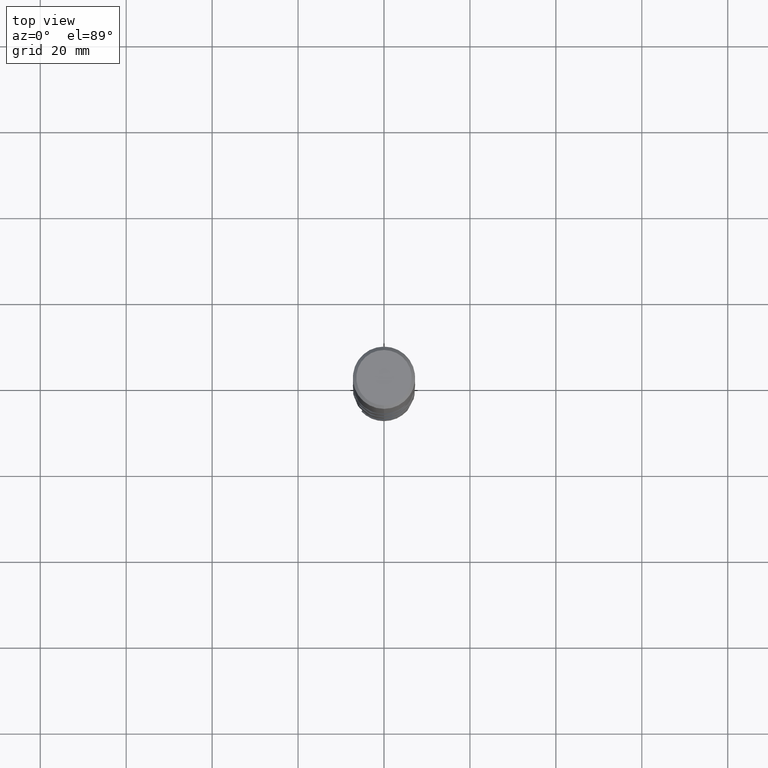
[diagram: clean part render]
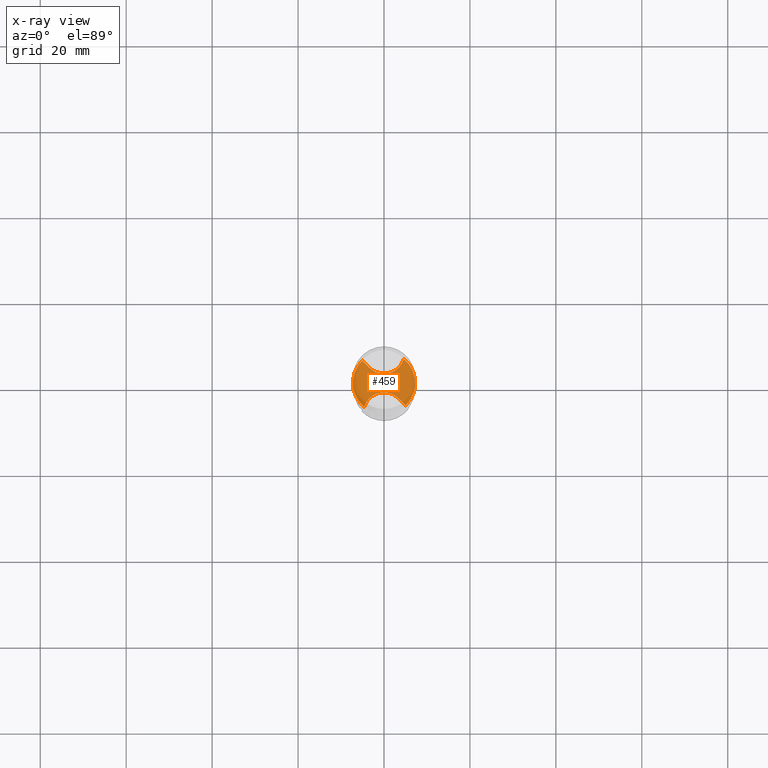
[diagram: x-ray — body ghosted, one internal face saturated and labeled with its STEP entity id]
A machine part, top view, then the same camera in x-ray: the body is ghosted and one INTERNAL B-rep face — a face not visible from any outside direction — is saturated and labeled: STEP entity #459.
In plain terms, the highlighted planar face has unit normal (-0, 0, 1).
Its self-contained STEP definition (entity closure, byte-faithful):
#297=EDGE_CURVE('',#371,#701,#777,.T.);
#371=VERTEX_POINT('',#855);
#405=VERTEX_POINT('',#892);
#459=ADVANCED_FACE('',(#951),#952,.T.);
#477=EDGE_CURVE('',#581,#371,#972,.T.);
#495=VERTEX_POINT('',#991);
#507=EDGE_CURVE('',#405,#701,#1006,.T.);
#545=EDGE_CURVE('',#605,#495,#1048,.T.);
#581=VERTEX_POINT('',#1089);
#583=EDGE_CURVE('',#581,#495,#1091,.T.);
#605=VERTEX_POINT('',#1113);
#639=EDGE_CURVE('',#405,#605,#1150,.T.);
#701=VERTEX_POINT('',#1218);
#777=B_SPLINE_CURVE_WITH_KNOTS('',3,(#1374,#1375,#1376,#1377),.UNSPECIFIED.,.F.,.F.,(4,4),(0.0,5.22160163024618),.UNSPECIFIED.);
#855=CARTESIAN_POINT('',(-3.42080777330725,3.59099069512563,-72.8));
#892=CARTESIAN_POINT('',(-4.61739645179763,-5.58933806607962,-72.8));
#951=FACE_OUTER_BOUND('',#3158,.T.);
#952=PLANE('',#3159);
#972=B_SPLINE_CURVE_WITH_KNOTS('',3,(#3214,#3215,#3216,#3217,#3218,#3219,#3220,#3221,#3222,#3223,#3224,#3225,#3226,#3227,#3228,#3229),.UNSPECIFIED.,.F.,.F.,(4,2,2,2,2,2,2,4),(0.0,1.88804918587361,3.77593282030139,5.66379115889456,7.55174514325546,9.43985975144161,10.5762658189255,11.7126866601235),.UNSPECIFIED.);
#991=CARTESIAN_POINT('',(5.04056011043295,-5.21093118195896,-72.8));
#1006=CIRCLE('',#4141,7.2499);
#1048=B_SPLINE_CURVE_WITH_KNOTS('',3,(#4547,#4548,#4549,#4550),.UNSPECIFIED.,.F.,.F.,(4,4),(0.0,5.22160163137986),.UNSPECIFIED.);
#1089=CARTESIAN_POINT('',(4.61739645179762,5.58933806607962,-72.8));
#1091=CIRCLE('',#5684,7.2499);
#1113=CARTESIAN_POINT('',(3.42080777330725,-3.59099069512565,-72.8));
#1150=B_SPLINE_CURVE_WITH_KNOTS('',3,(#5936,#5937,#5938,#5939,#5940,#5941,#5942,#5943,#5944,#5945,#5946,#5947,#5948,#5949,#5950,#5951),.UNSPECIFIED.,.F.,.F.,(4,2,2,2,2,2,2,4),(0.0,1.88804918587363,3.77593282030144,5.66379115889476,7.55174514325588,9.43985975144221,10.5762658189262,11.7126866601245),.UNSPECIFIED.);
#1218=CARTESIAN_POINT('',(-5.04056011043295,5.21093118195895,-72.8));
#1374=CARTESIAN_POINT('',(-3.42080777337796,3.59099069505492,-72.8));
#1375=CARTESIAN_POINT('',(-4.65148328262948,4.8218017963367,-72.8));
#1376=CARTESIAN_POINT('',(-5.89772456333902,6.06819630222702,-72.8));
#1377=CARTESIAN_POINT('',(-7.12925387163604,7.2999,-72.8));
#3158=EDGE_LOOP('',(#7342,#7343,#7344,#7345,#7346,#7347));
#3159=AXIS2_PLACEMENT_3D('',#7348,#7349,#7350);
#3214=CARTESIAN_POINT('',(4.82139387752319,7.2999,-72.8));
#3215=CARTESIAN_POINT('',(4.8594328871391,6.67170089568098,-72.8));
#3216=CARTESIAN_POINT('',(4.77440876274572,6.04208083546268,-72.8));
#3217=CARTESIAN_POINT('',(4.36780014804756,4.85092616315052,-72.8));
#3218=CARTESIAN_POINT('',(4.05012559412787,4.30077976150823,-72.8));
#3219=CARTESIAN_POINT('',(3.22177520629201,3.35322847205971,-72.8));
#3220=CARTESIAN_POINT('',(2.71902531559702,2.96488509888582,-72.8));
#3221=CARTESIAN_POINT('',(1.59293593891322,2.40274511978182,-72.8));
#3222=CARTESIAN_POINT('',(0.980360224198824,2.23433542708723,-72.8));
#3223=CARTESIAN_POINT('',(-0.2749215767062,2.1417846315084,-72.8));
#3224=CARTESIAN_POINT('',(-0.905627221364688,2.21854904084659,-72.8));
#3225=CARTESIAN_POINT('',(-1.86394232382365,2.53167577238636,-72.8));
#3226=CARTESIAN_POINT('',(-2.20893630023423,2.69124680530529,-72.8));
#3227=CARTESIAN_POINT('',(-2.85456461311569,3.08765189644602,-72.8));
#3228=CARTESIAN_POINT('',(-3.15296689296129,3.32311685897473,-72.8));
#3229=CARTESIAN_POINT('',(-3.42080777330724,3.59099069512563,-72.8));
#4141=AXIS2_PLACEMENT_3D('',#7440,#7441,#7442);
#4547=CARTESIAN_POINT('',(3.42080777337796,-3.59099069505494,-72.8));
#4548=CARTESIAN_POINT('',(4.65148328289668,-4.82180179660394,-72.8));
#4549=CARTESIAN_POINT('',(5.89772456343583,-6.06819630232386,-72.8));
#4550=CARTESIAN_POINT('',(7.12925387163602,-7.2999,-72.8));
#5684=AXIS2_PLACEMENT_3D('',#7536,#7537,#7538);
#5936=CARTESIAN_POINT('',(-4.8213938775232,-7.2999,-72.8));
#5937=CARTESIAN_POINT('',(-4.85943288713911,-6.67170089568098,-72.8));
#5938=CARTESIAN_POINT('',(-4.77440876274572,-6.04208083546268,-72.8));
#5939=CARTESIAN_POINT('',(-4.36780014804756,-4.85092616315051,-72.8));
#5940=CARTESIAN_POINT('',(-4.05012559412786,-4.30077976150822,-72.8));
#5941=CARTESIAN_POINT('',(-3.22177520629199,-3.35322847205969,-72.8));
#5942=CARTESIAN_POINT('',(-2.71902531559695,-2.96488509888581,-72.8));
#5943=CARTESIAN_POINT('',(-1.59293593891321,-2.40274511978184,-72.8));
#5944=CARTESIAN_POINT('',(-0.980360224198842,-2.23433542708724,-72.8));
#5945=CARTESIAN_POINT('',(0.274921576706204,-2.14178463150841,-72.8));
#5946=CARTESIAN_POINT('',(0.905627221364699,-2.2185490408466,-72.8));
#5947=CARTESIAN_POINT('',(1.8639423238237,-2.53167577238639,-72.8));
#5948=CARTESIAN_POINT('',(2.20893630023429,-2.69124680530535,-72.8));
#5949=CARTESIAN_POINT('',(2.85456461311568,-3.08765189644603,-72.8));
#5950=CARTESIAN_POINT('',(3.15296689296126,-3.32311685897472,-72.8));
#5951=CARTESIAN_POINT('',(3.42080777330724,-3.59099069512564,-72.8));
#7342=ORIENTED_EDGE('',*,*,#545,.T.);
#7343=ORIENTED_EDGE('',*,*,#583,.F.);
#7344=ORIENTED_EDGE('',*,*,#477,.T.);
#7345=ORIENTED_EDGE('',*,*,#297,.T.);
#7346=ORIENTED_EDGE('',*,*,#507,.F.);
#7347=ORIENTED_EDGE('',*,*,#639,.T.);
#7348=CARTESIAN_POINT('',(0.0,3.62495,-72.8));
#7349=DIRECTION('',(-0.0,0.0,1.0));
#7350=DIRECTION('',(0.0,-1.0,0.0));
#7440=CARTESIAN_POINT('',(0.0,0.0,-72.8));
#7441=DIRECTION('',(0.0,0.0,-1.0));
#7442=DIRECTION('',(0.0,1.0,0.0));
#7536=CARTESIAN_POINT('',(0.0,0.0,-72.8));
#7537=DIRECTION('',(0.0,0.0,-1.0));
#7538=DIRECTION('',(0.0,1.0,0.0));